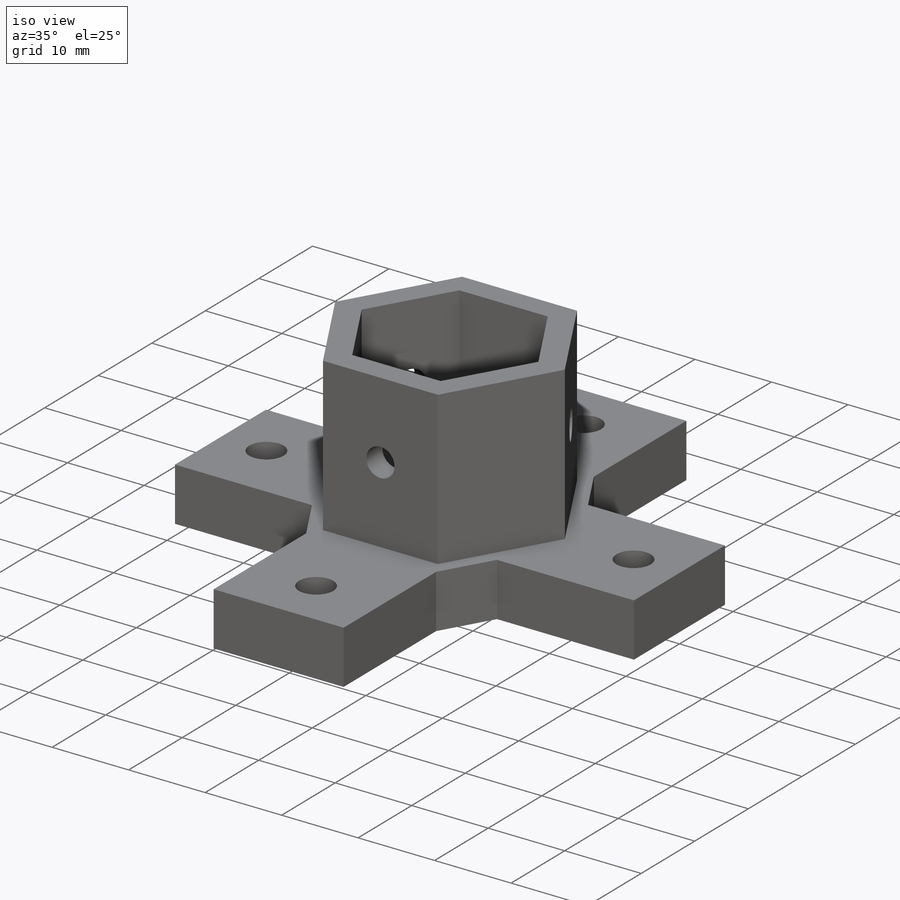
[diagram: iso view]
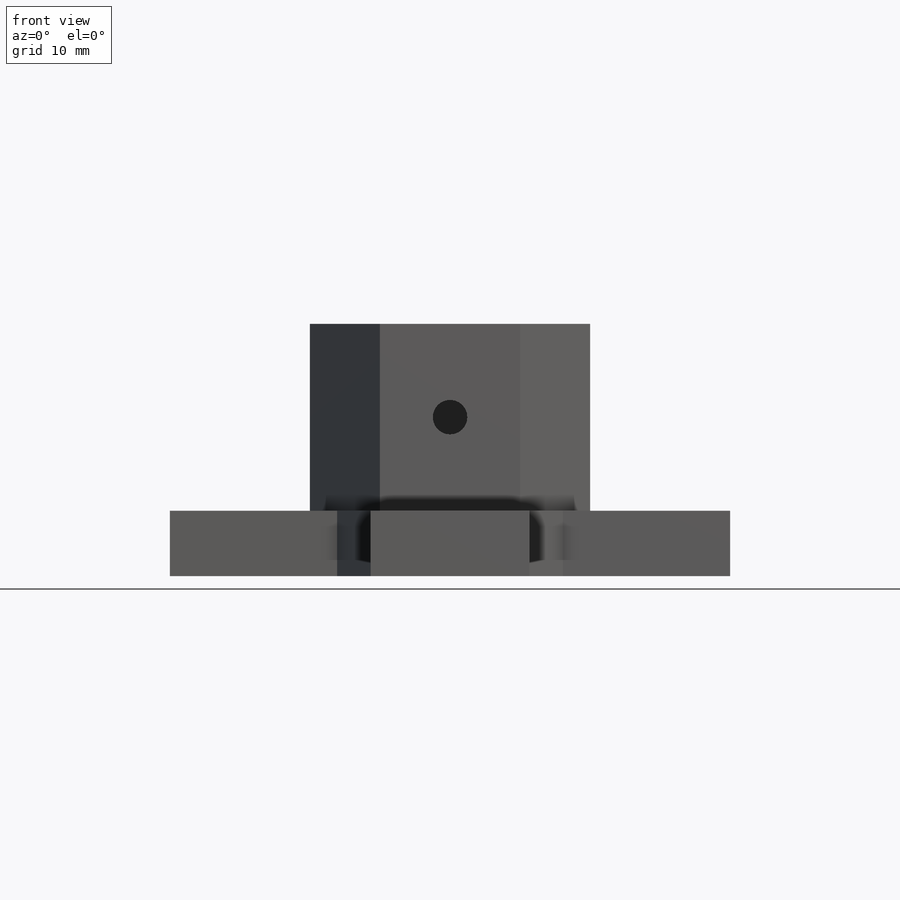
[diagram: front view]
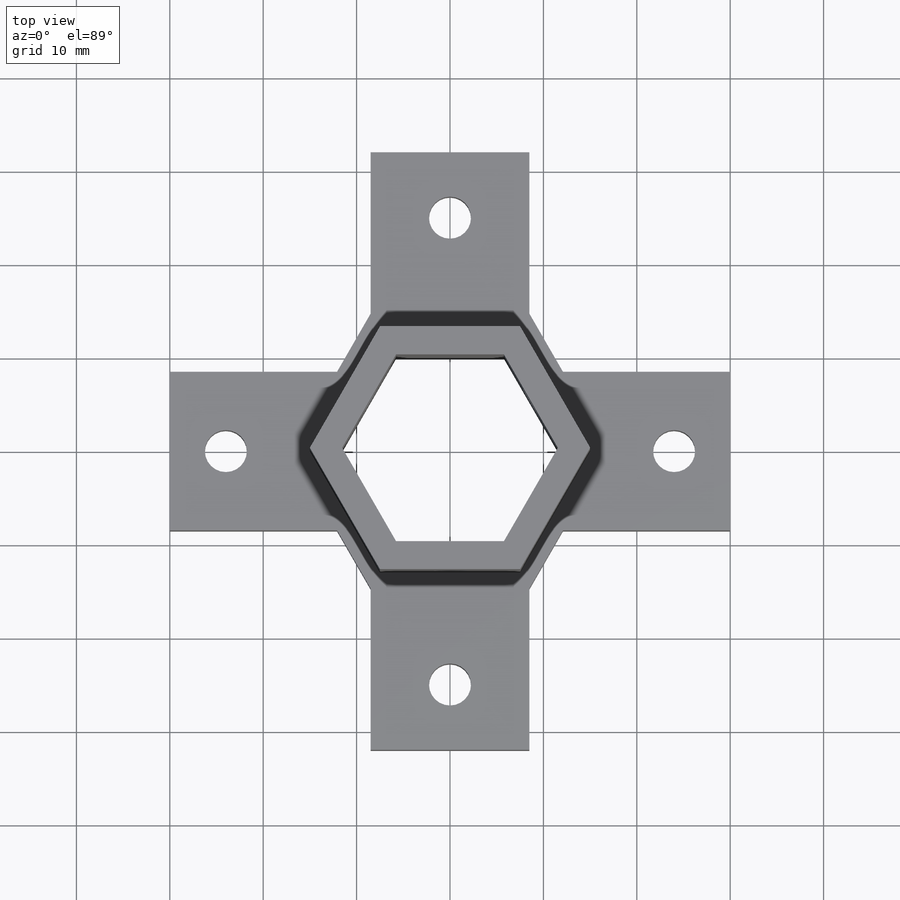
[diagram: top view]
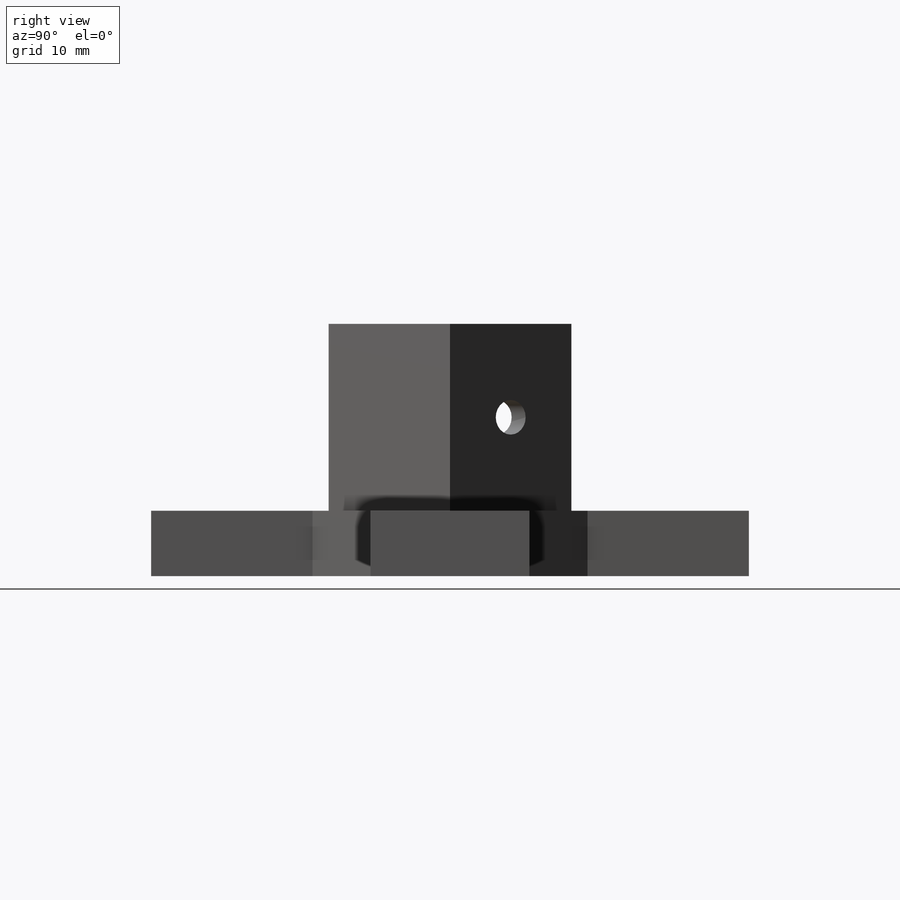
[diagram: right view]
SOLIDWORKS PART (.sldprt)
format: sldprt  version: not decoded by parser v0  size: 278,016 bytes
history: native  units: mm
features: sketch x7, cut_extrude x5, extrude x2, mirror x2, material x1 (+16 scaffold rows collapsed)
feature tree (33):
  scaffold x16  (default folders/planes/origin — collapsed)
  material  "Material <not specified>"
  sketch  "Sketch1"  dims[c1.D6=20.0mm c1.D1=17.0mm c1.D2=60.0mm c1.D3=17.0mm c1.D4=64.0mm c1.D5=17.0mm c2.D6=~12.402111mm]
  extrude  "Boss-Extrude1"  Depth=7mm
  sketch  "Sketch2"  dims[D1=26.0mm]
  extrude  "Boss-Extrude2"  Depth=20mm
  sketch  "Sketch3"  dims[D1=4.5mm D2=25.0mm]
  cut_extrude  "Cut-Extrude1"  [1 undecoded]
  mirror  "Mirror1"
  sketch  "Sketch4"  dims[D1=4.5mm D2=24.0mm]
  cut_extrude  "Cut-Extrude2"  [1 undecoded]
  mirror  "Mirror2"
  sketch  "Sketch5"  dims[D1=3.7mm D2=10.0mm]
  cut_extrude  "Cut-Extrude4"  [1 undecoded]
  sketch  "Sketch6"  dims[D1=3.7mm D2=10.0mm]
  cut_extrude  "Cut-Extrude5"  [1 undecoded]
  sketch  "Sketch7"  dims[D1=3.7mm D2=10.0mm]
  cut_extrude  "Cut-Extrude6"  [1 undecoded]
decode coverage: 9 of 16 modeling features carry decoded parameters
note: ~ marks probable driven/reference dimensions
note: 5 parameter values undecoded
summary: no parameter record found for 5 features
note: suppression state not decoded; provenance and decode notes live in map.json
